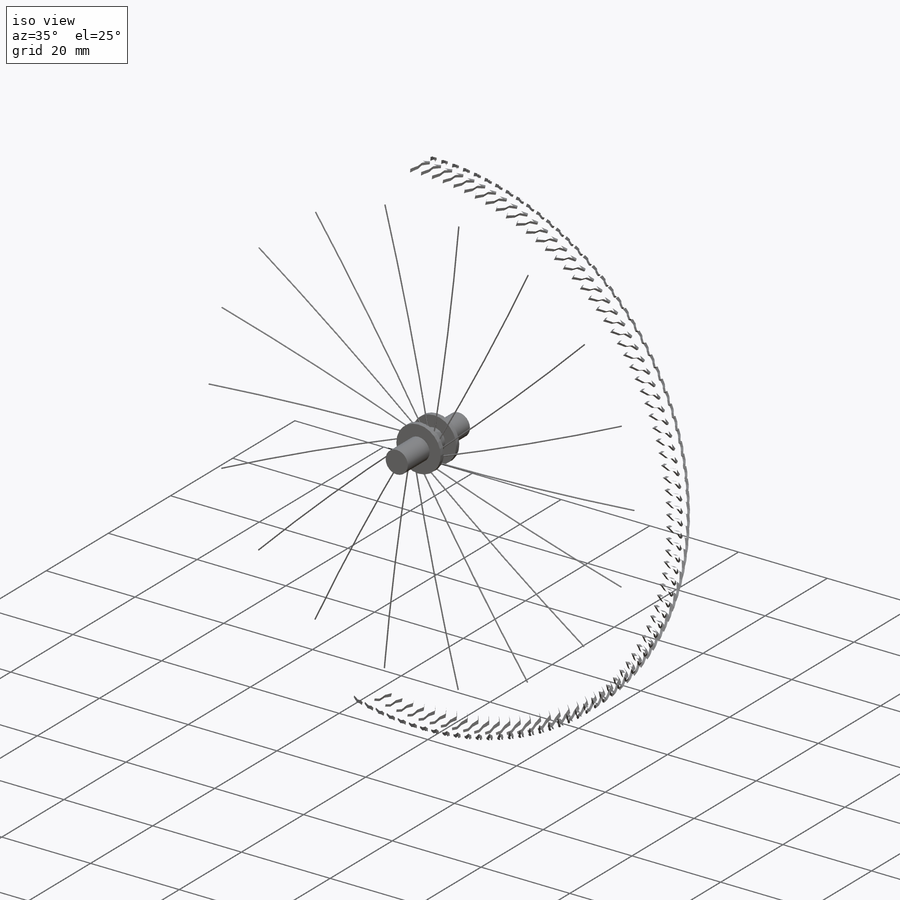
[diagram: iso view]
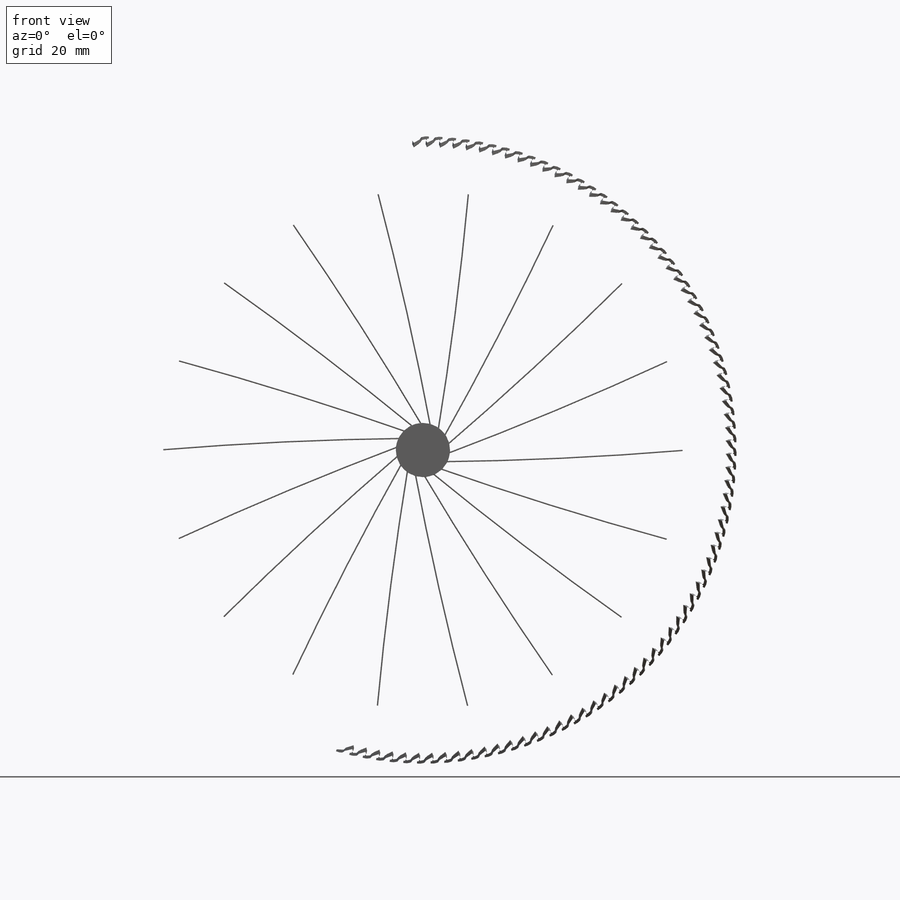
[diagram: front view]
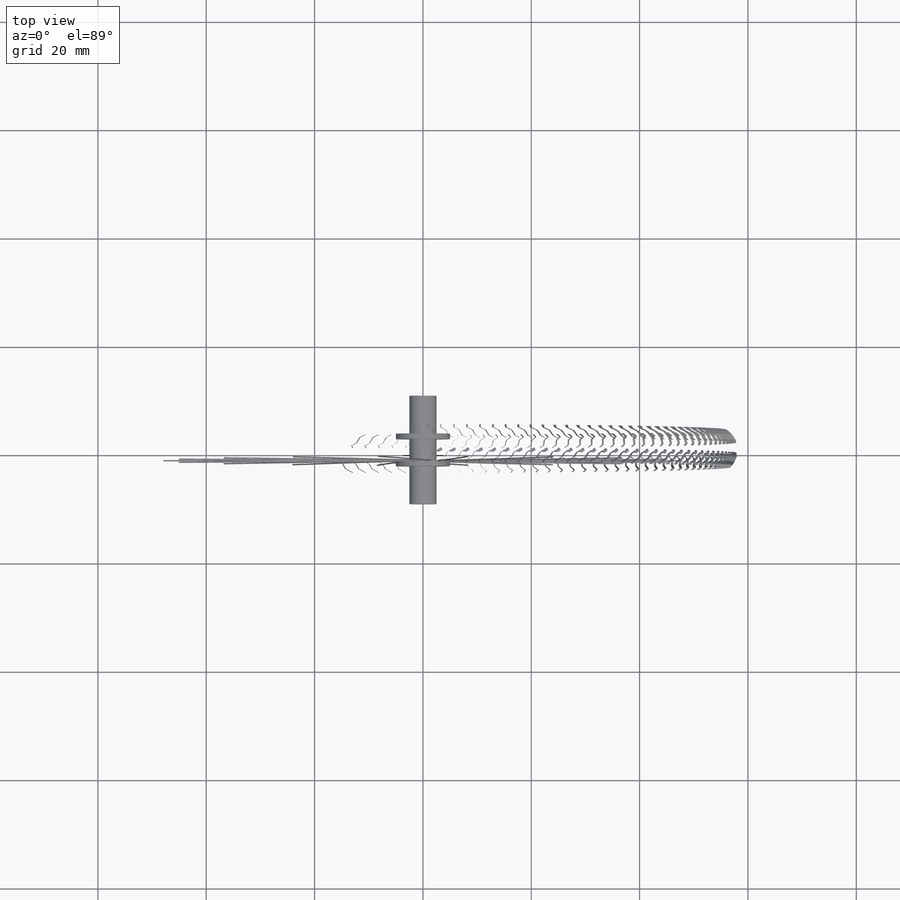
[diagram: top view]
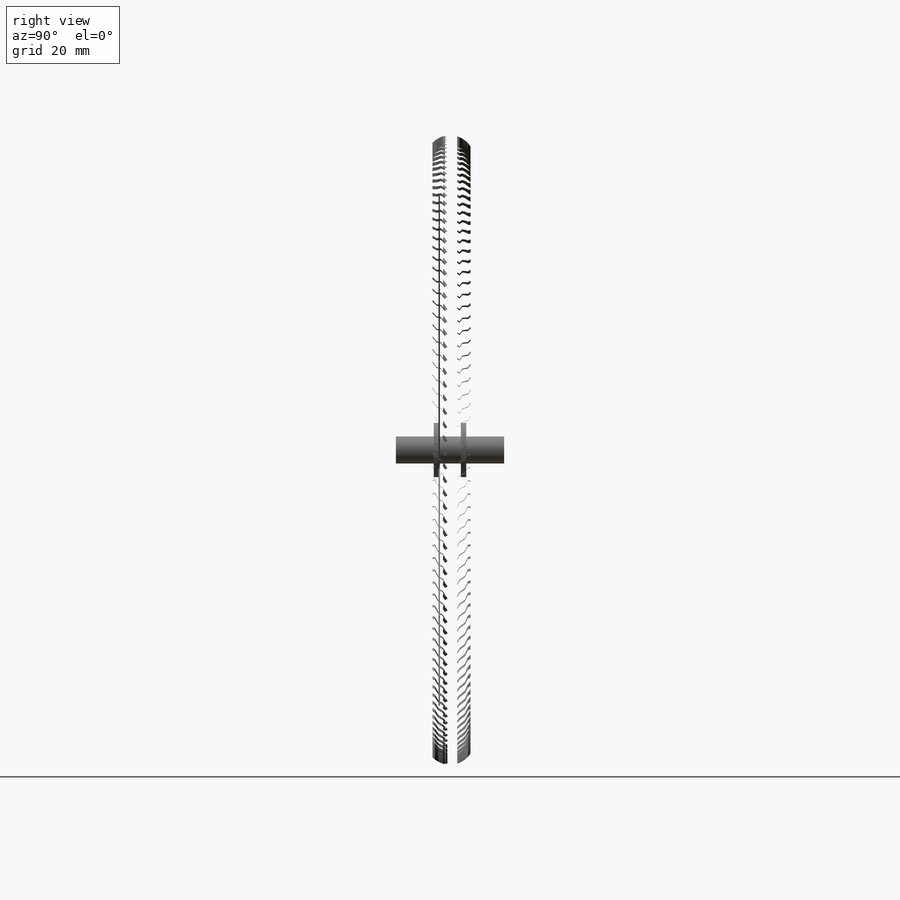
[diagram: right view]
SOLIDWORKS PART (.sldprt)
format: sldprt  version: not decoded by parser v0  size: 4,780,032 bytes
history: native  units: mm
features: sketch x10, plane x5, extrude x3, pattern_circular x3, revolve x2, sweep x2, material x1, mirror x1, cut_revolve x1 (+12 scaffold rows collapsed)
feature tree (40):
  scaffold x12  (default folders/planes/origin — collapsed)
  material  "Material <not specified>"
  sketch  "Sketch1"  dims[c1.D4=10.0mm c1.D6=0.25mm c1.D7=6.5mm c1.D8=1.0mm c1.D9=0.4mm c1.D10=0.1mm c1.D1=50.0mm c1.D2=7.0mm c1.D3=3.0mm c1.D5=0.2mm c2.D7=~0.762637mm c2.D11=0.5mm]
  revolve  "Revolve1"  Angle=360deg
  sketch  "Sketch2"  dims[D1=5.0mm]
  extrude  "Boss-Extrude2"  Depth=20mm
  sketch  "Sketch3"  dims[D1=10.0mm]
  extrude  "Boss-Extrude3"  Depth=1mm
  plane  "Plane3"  Offset=5mm
  plane  "Plane4"
  plane  "Plane5"  Offset=2mm
  mirror  "Mirror3"
  sketch  "Sketch4"  dims[D1=7.5mm]
  plane  "Plane6"
  sketch  "Sketch5"  dims[D1=0.25mm]
  sweep  "Sweep1"
  pattern_circular  "CirPattern1"  Count=18 Angle=360deg
  sketch  "Sketch6"  dims[D1=7.5mm]
  plane  "Plane7"
  sketch  "Sketch7"  dims[D1=0.25mm]
  sweep  "Sweep2"
  pattern_circular  "CirPattern2"  Count=18 Angle=360deg
  sketch  "Sketch8"  dims[c1.D1=4.0mm c1.D2=~0.258137mm c1.D4=4.0mm c2.D1=4.0mm c2.D3=~1.188901mm c2.D4=0.1mm c2.D5=~28.93424mm]
  revolve  "Revolve8"  Angle=360deg
  sketch  "Sketch10"  dims[c1.D1=1.8mm c1.D2=1.2mm c1.D3=0.5mm c1.D4=0.5mm c2.D3=0.5mm c2.D4=0.5mm c2.D5=0.5mm c2.D6=0.5mm c2.D7=~0.876644mm c3.D7=~6.55567deg c4.D7=~0.876644mm c5.D7=~6.55567deg c6.D7=0.5mm c6.D8=~0.242487mm c7.D8=~6.948009deg c8.D8=~0.573207mm]
  extrude  "Boss-Extrude4"  Depth=3mm
  sketch  "Sketch11"  dims[D1=0.5mm]
  cut_revolve  "Cut-Revolve2"  Angle=360deg
  pattern_circular  "CirPattern5"  Count=144 Angle=360deg
decode coverage: 19 of 22 modeling features carry decoded parameters
note: ~ marks probable driven/reference dimensions
note: suppression state not decoded; provenance and decode notes live in map.json
